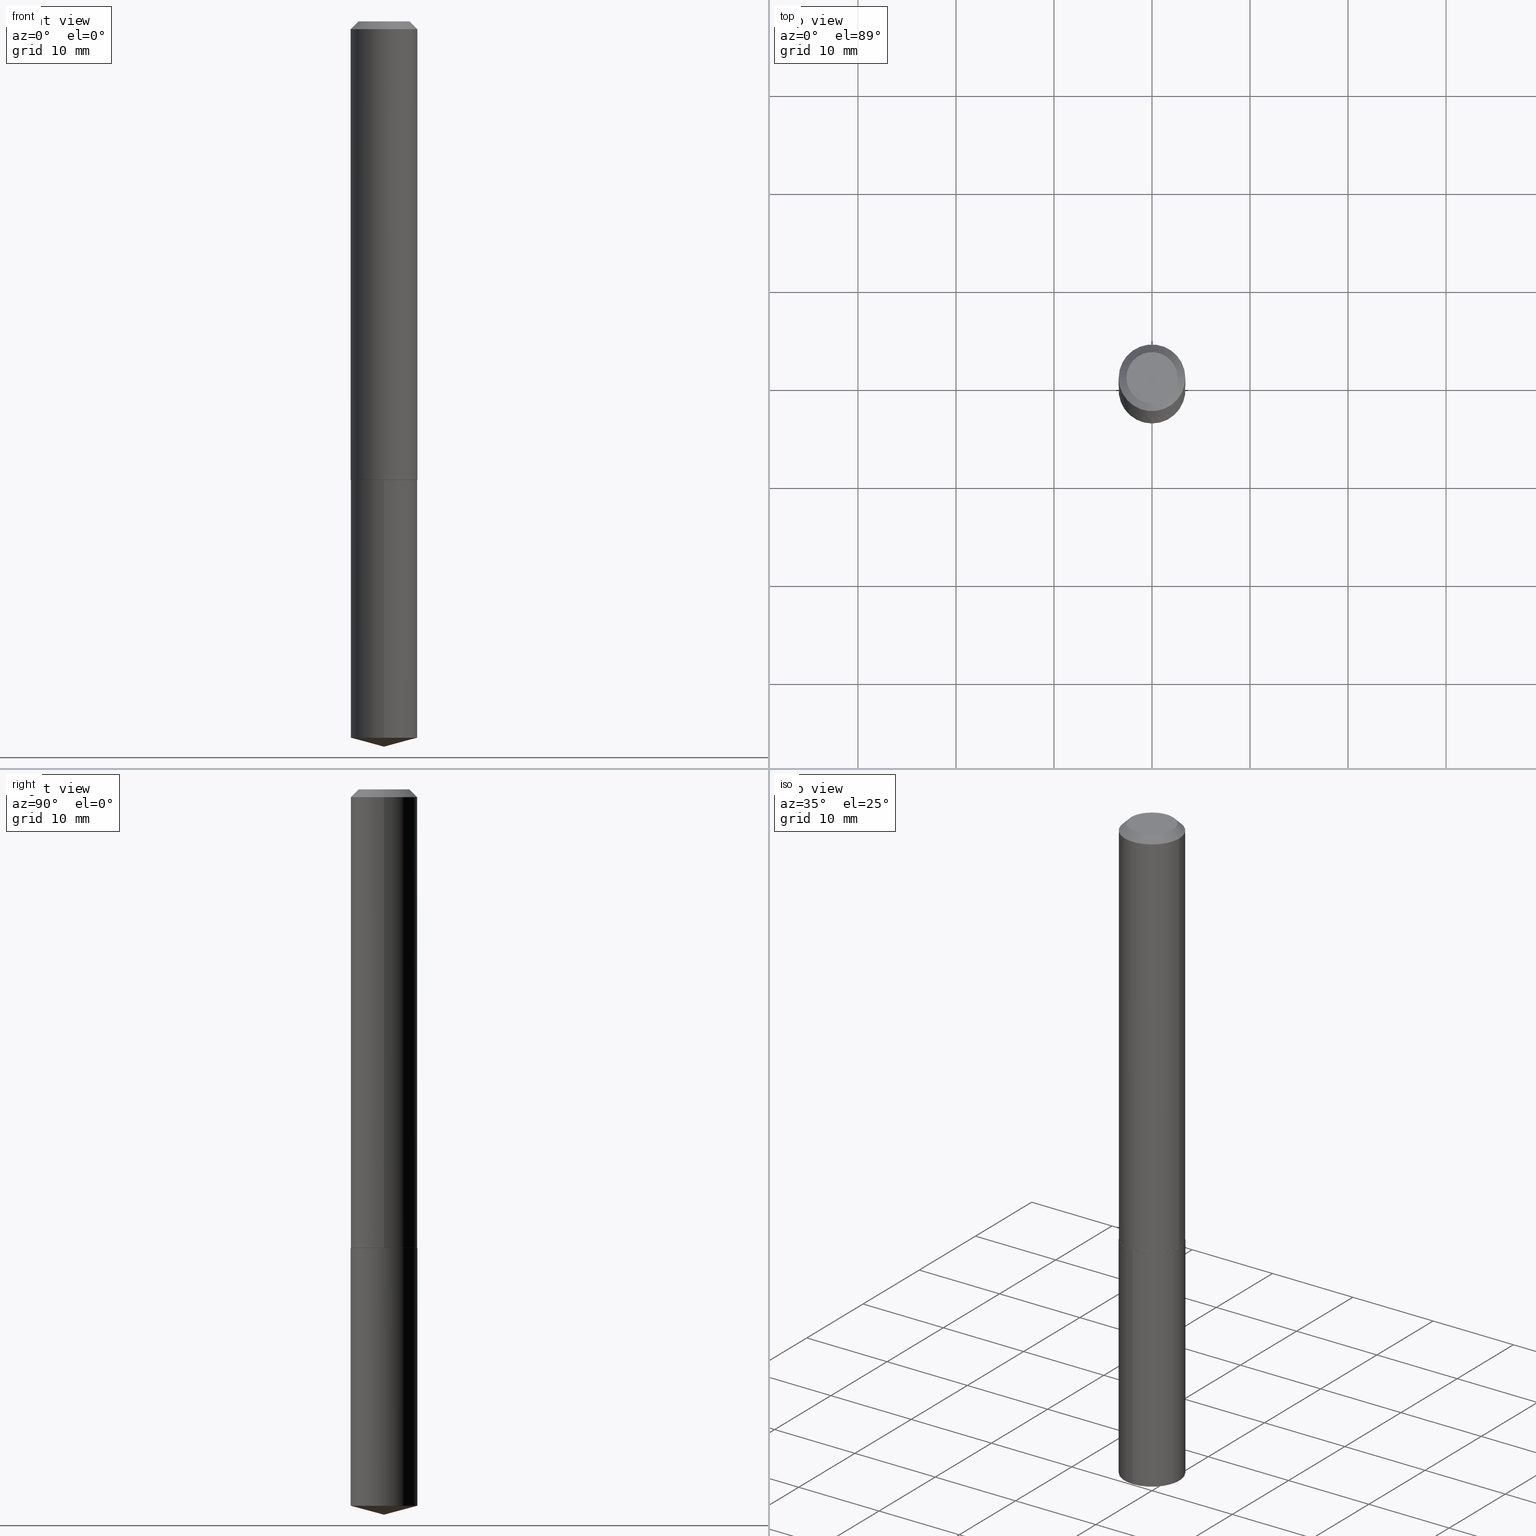
[diagram: canonical four-view strip — front | top / right | iso, engineering-drawing reading convention]
A machine part, canonical four-view strip (front | top / right | iso — engineering-drawing reading convention). The complete STEP part file that produces these views, byte-faithful:
ISO-10303-21;
HEADER;
FILE_DESCRIPTION (( 'STEP AP203' ),
    '1' );
FILE_NAME ('63013.STEP',
    '2024-04-23T07:36:08',
    ( '' ),
    ( '' ),
    'SwSTEP 2.0',
    'SolidWorks 2023',
    '' );
FILE_SCHEMA (( 'CONFIG_CONTROL_DESIGN' ));
ENDSEC;

DATA;
#1 = APPROVAL_ROLE ( '' ) ;
#2 = VERTEX_POINT ( 'NONE', #315 ) ;
#3 = DIRECTION ( 'NONE',  ( 1.000000000000000000, -6.982962677686265922E-15, 4.876176775795935793E-29 ) ) ;
#4 = VECTOR ( 'NONE', #382, 39.37007874015748143 ) ;
#5 = DIRECTION ( 'NONE',  ( -2.445468806185136877E-29, 3.491481338843145188E-15, 1.000000000000000000 ) ) ;
#6 = APPROVAL_DATE_TIME ( #311, #270 ) ;
#7 = EDGE_CURVE ( 'NONE', #200, #369, #129, .T. ) ;
#8 = ORIENTED_EDGE ( 'NONE', *, *, #20, .F. ) ;
#9 = EDGE_LOOP ( 'NONE', ( #171, #363 ) ) ;
#10 = DIRECTION ( 'NONE',  ( 6.863315791527690315E-15, 0.9659258262890690894, 0.2588190451025177974 ) ) ;
#11 = EDGE_CURVE ( 'NONE', #260, #47, #21, .T. ) ;
#12 = CARTESIAN_POINT ( 'NONE',  ( 0.1338499999999999968, -1.043778346247155835E-15, -0.03125000000000021511 ) ) ;
#13 = EDGE_CURVE ( 'NONE', #191, #369, #115, .T. ) ;
#14 = ORIENTED_EDGE ( 'NONE', *, *, #364, .F. ) ;
#15 = DIRECTION ( 'NONE',  ( 1.000000000000000000, -6.982962677686264344E-15, 0.000000000000000000 ) ) ;
#16 = AXIS2_PLACEMENT_3D ( 'NONE', #292, #298, #265 ) ;
#17 = PRODUCT_DEFINITION_FORMATION_WITH_SPECIFIED_SOURCE ( 'ANY', '', #307, .NOT_KNOWN. ) ;
#18 = EDGE_LOOP ( 'NONE', ( #250, #184, #385, #72 ) ) ;
#19 = CARTESIAN_POINT ( 'NONE',  ( -0.1333500000000001073, -5.482896401508290877E-15, -1.842500000000000249 ) ) ;
#20 = EDGE_CURVE ( 'NONE', #222, #192, #341, .T. ) ;
#21 = LINE ( 'NONE', #284, #383 ) ;
#22 = DIRECTION ( 'NONE',  ( -6.745023994389835189E-15, -0.9659258262890670910, 0.2588190451025245142 ) ) ;
#23 = DIRECTION ( 'NONE',  ( -2.445609890666665259E-29, 3.491279297835566768E-15, 1.000000000000000000 ) ) ;
#24 = ORIENTED_EDGE ( 'NONE', *, *, #11, .F. ) ;
#25 = VECTOR ( 'NONE', #354, 39.37007874015748143 ) ;
#26 = SECURITY_CLASSIFICATION ( '', '', #39 ) ;
#27 = DIRECTION ( 'NONE',  ( 1.000000000000000000, -6.982962677686267499E-15, 4.876182450887182109E-29 ) ) ;
#28 = ORIENTED_EDGE ( 'NONE', *, *, #202, .T. ) ;
#29 = DIRECTION ( 'NONE',  ( 2.438088387897960049E-29, -3.491481338843145188E-15, -1.000000000000000000 ) ) ;
#30 = DIRECTION ( 'NONE',  ( 0.7071067811867045583, -2.468850131083901441E-15, 0.7071067811863904762 ) ) ;
#31 = FACE_OUTER_BOUND ( 'NONE', #227, .T. ) ;
#32 = CARTESIAN_POINT ( 'NONE',  ( 4.505776275396114718E-29, -6.433054366818497031E-15, -1.842500000000000249 ) ) ;
#33 = ADVANCED_FACE ( 'NONE', ( #164 ), #80, .T. ) ;
#34 = AXIS2_PLACEMENT_3D ( 'NONE', #356, #287, #15 ) ;
#35 = APPROVAL_DATE_TIME ( #277, #132 ) ;
#36 = EDGE_CURVE ( 'NONE', #134, #295, #343, .T. ) ;
#37 = ORIENTED_EDGE ( 'NONE', *, *, #20, .T. ) ;
#38 = CALENDAR_DATE ( 2024, 23, 4 ) ;
#39 = SECURITY_CLASSIFICATION_LEVEL ( 'unclassified' ) ;
#40 = ORIENTED_EDGE ( 'NONE', *, *, #66, .F. ) ;
#41 = MANIFOLD_SOLID_BREP ( 'Body-Move/Copy2[1]', #42 ) ;
#42 = CLOSED_SHELL ( 'NONE', ( #50, #168, #55, #148, #280 ) ) ;
#43 = MANIFOLD_SOLID_BREP ( 'Body-Move/Copy2[2]', #282 ) ;
#44 = ADVANCED_FACE ( 'NONE', ( #291 ), #211, .T. ) ;
#45 = ORIENTED_EDGE ( 'NONE', *, *, #223, .F. ) ;
#46 = ADVANCED_FACE ( 'NONE', ( #87 ), #74, .T. ) ;
#47 = VERTEX_POINT ( 'NONE', #12 ) ;
#48 = AXIS2_PLACEMENT_3D ( 'NONE', #51, #321, #54 ) ;
#49 = AXIS2_PLACEMENT_3D ( 'NONE', #61, #172, #27 ) ;
#50 = ADVANCED_FACE ( 'NONE', ( #169 ), #293, .T. ) ;
#51 = CARTESIAN_POINT ( 'NONE',  ( 0.000000000000000000, 0.000000000000000000, 0.000000000000000000 ) ) ;
#52 = CARTESIAN_POINT ( 'NONE',  ( 7.642090019328604414E-31, -1.091087918388490513E-16, -0.03125000000000021511 ) ) ;
#53 =( NAMED_UNIT ( * ) PLANE_ANGLE_UNIT ( ) SI_UNIT ( $, .RADIAN. ) );
#54 = DIRECTION ( 'NONE',  ( 1.000000000000000000, -6.982962677686266711E-15, 4.876176775795934672E-29 ) ) ;
#55 = ADVANCED_FACE ( 'NONE', ( #389 ), #299, .T. ) ;
#56 = LOCAL_TIME ( 3, 36, 8.000000000000000000, #165 ) ;
#57 = EDGE_LOOP ( 'NONE', ( #229, #28 ) ) ;
#58 = CARTESIAN_POINT ( 'NONE',  ( 7.642090019328604414E-31, -1.091087918388490513E-16, -0.03125000000000021511 ) ) ;
#59 = CARTESIAN_POINT ( 'NONE',  ( 7.642090019328604414E-31, -1.091087918388490513E-16, -0.03125000000000021511 ) ) ;
#60 = ORIENTED_EDGE ( 'NONE', *, *, #313, .T. ) ;
#61 = CARTESIAN_POINT ( 'NONE',  ( -1.766952972086489110E-47, 2.522740553079194936E-33, 7.225416114969328827E-19 ) ) ;
#62 = AXIS2_PLACEMENT_3D ( 'NONE', #58, #207, #93 ) ;
#63 = FACE_OUTER_BOUND ( 'NONE', #9, .T. ) ;
#64 = APPROVAL_ROLE ( '' ) ;
#65 = CARTESIAN_POINT ( 'NONE',  ( 4.505776275396114718E-29, -6.433054366818497031E-15, -1.842500000000000249 ) ) ;
#66 = EDGE_CURVE ( 'NONE', #359, #306, #154, .T. ) ;
#67 = CARTESIAN_POINT ( 'NONE',  ( 9.510614518149640872E-16, 0.1338499999999935297, -1.842500000000000915 ) ) ;
#68 = CONICAL_SURFACE ( 'NONE', #121, 146.9311341562547568, 1.308996938995746762 ) ;
#69 = EDGE_LOOP ( 'NONE', ( #185, #262, #327, #8 ) ) ;
#70 = COORDINATED_UNIVERSAL_TIME_OFFSET ( 5, 0, .BEHIND. ) ;
#71 = CALENDAR_DATE ( 2024, 23, 4 ) ;
#72 = ORIENTED_EDGE ( 'NONE', *, *, #78, .F. ) ;
#73 = PERSON_AND_ORGANIZATION_ROLE ( 'design_supplier' ) ;
#74 = CONICAL_SURFACE ( 'NONE', #166, 0.1338500000000002188, 0.7853981633976704346 ) ;
#75 = ORGANIZATION ( 'UNSPECIFIED', 'UNSPECIFIED', '' ) ;
#76 = CC_DESIGN_PERSON_AND_ORGANIZATION_ASSIGNMENT ( #374, #251, ( #17 ) ) ;
#77 = PERSON_AND_ORGANIZATION_ROLE ( 'classification_officer' ) ;
#78 = EDGE_CURVE ( 'NONE', #200, #2, #328, .T. ) ;
#79 = DIRECTION ( 'NONE',  ( -2.445468806185136597E-29, 3.491481338843145583E-15, 1.000000000000000000 ) ) ;
#80 = CYLINDRICAL_SURFACE ( 'NONE', #48, 0.1338500000000001078 ) ;
#81 = CC_DESIGN_PERSON_AND_ORGANIZATION_ASSIGNMENT ( #124, #226, ( #307 ) ) ;
#82 = DIRECTION ( 'NONE',  ( -2.445609890666665259E-29, 3.491279297835566768E-15, 1.000000000000000000 ) ) ;
#83 = AXIS2_PLACEMENT_3D ( 'NONE', #32, #105, #320 ) ;
#84 = ORIENTED_EDGE ( 'NONE', *, *, #388, .T. ) ;
#85 = DIRECTION ( 'NONE',  ( -2.445609890666665259E-29, 3.491279297835566768E-15, 1.000000000000000000 ) ) ;
#86 = EDGE_CURVE ( 'NONE', #369, #200, #193, .T. ) ;
#87 = FACE_OUTER_BOUND ( 'NONE', #144, .T. ) ;
#88 = DIRECTION ( 'NONE',  ( -2.445468806185136597E-29, 3.491481338843145583E-15, 1.000000000000000000 ) ) ;
#89 = CIRCLE ( 'NONE', #332, 0.1025999999999999829 ) ;
#90 = DIRECTION ( 'NONE',  ( -2.445609890666665259E-29, 3.491279297835566768E-15, 1.000000000000000000 ) ) ;
#91 = ADVANCED_FACE ( 'NONE', ( #358 ), #331, .T. ) ;
#92 = CARTESIAN_POINT ( 'NONE',  ( 4.505776275396114718E-29, -6.433054366818497031E-15, -1.842500000000000249 ) ) ;
#93 = DIRECTION ( 'NONE',  ( 1.000000000000000000, -6.982962677686266711E-15, 0.000000000000000000 ) ) ;
#94 = ADVANCED_FACE ( 'NONE', ( #63 ), #142, .F. ) ;
#95 = DIRECTION ( 'NONE',  ( -1.000000000000000000, 6.982962677686266711E-15, 0.000000000000000000 ) ) ;
#96 = PERSON_AND_ORGANIZATION ( #353, #75 ) ;
#97 = CIRCLE ( 'NONE', #312, 0.1338500000000002188 ) ;
#98 = CARTESIAN_POINT ( 'NONE',  ( -8.834764860432445552E-48, 1.261370276539597468E-33, 3.612708057484664413E-19 ) ) ;
#99 = DIRECTION ( 'NONE',  ( 1.000000000000000000, -6.982962677686269866E-15, 0.000000000000000000 ) ) ;
#100 = CC_DESIGN_PERSON_AND_ORGANIZATION_ASSIGNMENT ( #217, #77, ( #26 ) ) ;
#101 = APPROVAL_STATUS ( 'not_yet_approved' ) ;
#102 = VECTOR ( 'NONE', #22, 39.37007874015748854 ) ;
#103 = COORDINATED_UNIVERSAL_TIME_OFFSET ( 5, 0, .BEHIND. ) ;
#104 = APPROVAL_STATUS ( 'not_yet_approved' ) ;
#105 = DIRECTION ( 'NONE',  ( 2.445609890666664699E-29, -3.491279297835566768E-15, -1.000000000000000000 ) ) ;
#106 = EDGE_LOOP ( 'NONE', ( #24, #45, #37, #376 ) ) ;
#107 = EDGE_CURVE ( 'NONE', #2, #137, #174, .T. ) ;
#108 = PERSON_AND_ORGANIZATION ( #353, #75 ) ;
#109 = AXIS2_PLACEMENT_3D ( 'NONE', #59, #170, #95 ) ;
#110 = ORIENTED_EDGE ( 'NONE', *, *, #364, .T. ) ;
#111 = EDGE_CURVE ( 'NONE', #359, #295, #232, .T. ) ;
#112 = CARTESIAN_POINT ( 'NONE',  ( 4.504553540993022477E-29, -6.431308626149075527E-15, -1.842000000000000526 ) ) ;
#113 = EDGE_LOOP ( 'NONE', ( #372, #60, #157 ) ) ;
#114 = DIRECTION ( 'NONE',  ( -1.000000000000000000, 6.982962677686266711E-15, 0.000000000000000000 ) ) ;
#115 = LINE ( 'NONE', #373, #138 ) ;
#116 = LOCAL_TIME ( 3, 36, 8.000000000000000000, #70 ) ;
#117 = ORIENTED_EDGE ( 'NONE', *, *, #242, .T. ) ;
#118 = UNCERTAINTY_MEASURE_WITH_UNIT (LENGTH_MEASURE( 1.000000000000000082E-05 ), #146, 'distance_accuracy_value', 'NONE');
#119 = DIRECTION ( 'NONE',  ( 1.000000000000000000, -6.982962677686269866E-15, 0.000000000000000000 ) ) ;
#120 = DIRECTION ( 'NONE',  ( -6.982962677686265922E-15, -1.000000000000000000, 3.510303681827646350E-15 ) ) ;
#121 = AXIS2_PLACEMENT_3D ( 'NONE', #236, #90, #203 ) ;
#122 = DIRECTION ( 'NONE',  ( -6.982962677686265133E-15, -1.000000000000000000, 4.081954417130015942E-15 ) ) ;
#123 = DIRECTION ( 'NONE',  ( 1.000000000000000000, -6.982962677686264344E-15, 0.000000000000000000 ) ) ;
#124 = PERSON_AND_ORGANIZATION ( #353, #75 ) ;
#125 = DIRECTION ( 'NONE',  ( 1.000000000000000000, -6.982962677686266711E-15, 4.876176775795934672E-29 ) ) ;
#126 = CIRCLE ( 'NONE', #49, 0.1025999999999999829 ) ;
#127 = CC_DESIGN_PERSON_AND_ORGANIZATION_ASSIGNMENT ( #235, #274, ( #347 ) ) ;
#128 = CARTESIAN_POINT ( 'NONE',  ( 0.000000000000000000, 0.000000000000000000, 0.000000000000000000 ) ) ;
#129 = CIRCLE ( 'NONE', #158, 0.1338499999999999968 ) ;
#130 = CALENDAR_DATE ( 2024, 23, 4 ) ;
#131 = COORDINATED_UNIVERSAL_TIME_OFFSET ( 5, 0, .BEHIND. ) ;
#132 = APPROVAL ( #104, 'UNSPECIFIED' ) ;
#133 = AXIS2_PLACEMENT_3D ( 'NONE', #303, #387, #120 ) ;
#134 = VERTEX_POINT ( 'NONE', #335 ) ;
#135 = EDGE_LOOP ( 'NONE', ( #110, #379, #257, #338 ) ) ;
#136 = ORIENTED_EDGE ( 'NONE', *, *, #78, .T. ) ;
#137 = VERTEX_POINT ( 'NONE', #67 ) ;
#138 = VECTOR ( 'NONE', #10, 39.37007874015748143 ) ;
#139 = DIRECTION ( 'NONE',  ( 1.000000000000000000, 0.000000000000000000, 0.000000000000000000 ) ) ;
#140 = DIRECTION ( 'NONE',  ( -6.982962677686265133E-15, -1.000000000000000000, 4.081954417130015942E-15 ) ) ;
#141 = PLANE ( 'NONE',  #83 ) ;
#142 = PLANE ( 'NONE',  #239 ) ;
#143 = DIRECTION ( 'NONE',  ( -6.982962677686265133E-15, -1.000000000000000000, 4.081954417130015942E-15 ) ) ;
#144 = EDGE_LOOP ( 'NONE', ( #342, #281, #317, #161 ) ) ;
#145 = DIRECTION ( 'NONE',  ( -2.445468806185136597E-29, 3.491481338843145583E-15, 1.000000000000000000 ) ) ;
#146 =( CONVERSION_BASED_UNIT ( 'INCH', #302 ) LENGTH_UNIT ( ) NAMED_UNIT ( #339 ) );
#147 = CARTESIAN_POINT ( 'NONE',  ( -0.1338500000000002188, -5.480247174334179676E-15, -1.842000000000000526 ) ) ;
#148 = ADVANCED_FACE ( 'NONE', ( #361 ), #352, .T. ) ;
#149 = CARTESIAN_POINT ( 'NONE',  ( 7.125039855468263396E-29, -1.017149310631414068E-14, -2.913400000000000212 ) ) ;
#150 = DATE_TIME_ROLE ( 'classification_date' ) ;
#151 = PERSON_AND_ORGANIZATION ( #353, #75 ) ;
#152 = CARTESIAN_POINT ( 'NONE',  ( 0.1333500000000001073, -7.364232439887960955E-15, -1.842500000000000249 ) ) ;
#153 = ADVANCED_FACE ( 'NONE', ( #334 ), #231, .T. ) ;
#154 = CIRCLE ( 'NONE', #366, 0.1333500000000001073 ) ;
#155 = ORIENTED_EDGE ( 'NONE', *, *, #181, .F. ) ;
#156 = EDGE_CURVE ( 'NONE', #369, #137, #271, .T. ) ;
#157 = ORIENTED_EDGE ( 'NONE', *, *, #86, .F. ) ;
#158 = AXIS2_PLACEMENT_3D ( 'NONE', #348, #85, #140 ) ;
#159 = CARTESIAN_POINT ( 'NONE',  ( 9.510614518149640872E-16, 0.1338499999999899492, -2.877535000593094860 ) ) ;
#160 = CIRCLE ( 'NONE', #340, 0.1338499999999999968 ) ;
#161 = ORIENTED_EDGE ( 'NONE', *, *, #388, .F. ) ;
#162 = ORIENTED_EDGE ( 'NONE', *, *, #13, .T. ) ;
#163 = CARTESIAN_POINT ( 'NONE',  ( 0.1338500000000002188, -7.365978180557384825E-15, -1.842000000000000526 ) ) ;
#164 = FACE_OUTER_BOUND ( 'NONE', #221, .T. ) ;
#165 = COORDINATED_UNIVERSAL_TIME_OFFSET ( 5, 0, .BEHIND. ) ;
#166 = AXIS2_PLACEMENT_3D ( 'NONE', #197, #349, #324 ) ;
#167 = CARTESIAN_POINT ( 'NONE',  ( 4.504553540993022477E-29, -6.431308626149075527E-15, -1.842000000000000526 ) ) ;
#168 = ADVANCED_FACE ( 'NONE', ( #31 ), #68, .T. ) ;
#169 = FACE_OUTER_BOUND ( 'NONE', #18, .T. ) ;
#170 = DIRECTION ( 'NONE',  ( 2.445468806185136597E-29, -3.491481338843145583E-15, -1.000000000000000000 ) ) ;
#171 = ORIENTED_EDGE ( 'NONE', *, *, #223, .T. ) ;
#172 = DIRECTION ( 'NONE',  ( -2.445468806185136597E-29, 3.491481338843145583E-15, 1.000000000000000000 ) ) ;
#173 = ORIENTED_EDGE ( 'NONE', *, *, #313, .F. ) ;
#174 = CIRCLE ( 'NONE', #378, 0.1338499999999999968 ) ;
#175 = APPROVAL_PERSON_ORGANIZATION ( #108, #132, #1 ) ;
#176 = DIRECTION ( 'NONE',  ( -2.445609890666665259E-29, 3.491279297835566768E-15, 1.000000000000000000 ) ) ;
#177 = DIRECTION ( 'NONE',  ( -2.445609890666665259E-29, 3.491279297835566768E-15, 1.000000000000000000 ) ) ;
#178 = CC_DESIGN_PERSON_AND_ORGANIZATION_ASSIGNMENT ( #368, #73, ( #17 ) ) ;
#179 = DIRECTION ( 'NONE',  ( -2.445609890666665259E-29, 3.491279297835566768E-15, 1.000000000000000000 ) ) ;
#180 = AXIS2_PLACEMENT_3D ( 'NONE', #128, #145, #125 ) ;
#181 = EDGE_CURVE ( 'NONE', #295, #192, #238, .T. ) ;
#182 = APPROVAL_PERSON_ORGANIZATION ( #151, #270, #370 ) ;
#183 = APPLICATION_CONTEXT ( 'configuration controlled 3d designs of mechanical parts and assemblies' ) ;
#184 = ORIENTED_EDGE ( 'NONE', *, *, #156, .T. ) ;
#185 = ORIENTED_EDGE ( 'NONE', *, *, #367, .F. ) ;
#186 = CALENDAR_DATE ( 2024, 23, 4 ) ;
#187 = AXIS2_PLACEMENT_3D ( 'NONE', #52, #255, #114 ) ;
#188 =( GEOMETRIC_REPRESENTATION_CONTEXT ( 3 ) GLOBAL_UNCERTAINTY_ASSIGNED_CONTEXT ( ( #118 ) ) GLOBAL_UNIT_ASSIGNED_CONTEXT ( ( #146, #53, #237 ) ) REPRESENTATION_CONTEXT ( 'NONE', 'WORKASPACE' ) );
#189 = CONICAL_SURFACE ( 'NONE', #109, 0.1338499999999999968, 0.7853981633974449483 ) ;
#190 = SHAPE_DEFINITION_REPRESENTATION ( #215, #266 ) ;
#191 = VERTEX_POINT ( 'NONE', #149 ) ;
#192 = VERTEX_POINT ( 'NONE', #269 ) ;
#193 = CIRCLE ( 'NONE', #323, 0.1338499999999999968 ) ;
#194 = ORIENTED_EDGE ( 'NONE', *, *, #36, .T. ) ;
#195 = DIRECTION ( 'NONE',  ( 0.000000000000000000, 0.000000000000000000, 1.000000000000000000 ) ) ;
#196 = ADVANCED_FACE ( 'NONE', ( #272 ), #189, .T. ) ;
#197 = CARTESIAN_POINT ( 'NONE',  ( 4.504553540993022477E-29, -6.431308626149075527E-15, -1.842000000000000526 ) ) ;
#198 = APPROVAL_STATUS ( 'not_yet_approved' ) ;
#199 = DIRECTION ( 'NONE',  ( 0.7071067811865451302, -7.319954787623248157E-15, -0.7071067811865499042 ) ) ;
#200 = VERTEX_POINT ( 'NONE', #294 ) ;
#201 = AXIS2_PLACEMENT_3D ( 'NONE', #355, #179, #230 ) ;
#202 = EDGE_CURVE ( 'NONE', #137, #2, #160, .T. ) ;
#203 = DIRECTION ( 'NONE',  ( -6.982962677686265922E-15, -1.000000000000000000, 3.510303681827646350E-15 ) ) ;
#204 = DIRECTION ( 'NONE',  ( -2.445468806185136597E-29, 3.491481338843145583E-15, 1.000000000000000000 ) ) ;
#205 = ORIENTED_EDGE ( 'NONE', *, *, #318, .F. ) ;
#206 = CARTESIAN_POINT ( 'NONE',  ( 7.037068110032762718E-29, -1.004665063692438826E-14, -2.877535000593094416 ) ) ;
#207 = DIRECTION ( 'NONE',  ( -2.445468806185136597E-29, 3.491481338843145583E-15, 1.000000000000000000 ) ) ;
#208 = AXIS2_PLACEMENT_3D ( 'NONE', #252, #82, #316 ) ;
#209 = DIRECTION ( 'NONE',  ( -1.000000000000000000, 6.982962677686265922E-15, -4.876176775795935793E-29 ) ) ;
#210 = CARTESIAN_POINT ( 'NONE',  ( -0.1338500000000001078, 9.510614518148948646E-16, -6.583994618306196527E-30 ) ) ;
#211 = CONICAL_SURFACE ( 'NONE', #187, 0.1338499999999999968, 0.7853981633974449483 ) ;
#212 = CC_DESIGN_DATE_AND_TIME_ASSIGNMENT ( #249, #243, ( #347 ) ) ;
#213 = VECTOR ( 'NONE', #326, 39.37007874015748143 ) ;
#214 = ORIENTED_EDGE ( 'NONE', *, *, #336, .F. ) ;
#215 = PRODUCT_DEFINITION_SHAPE ( 'NONE', 'NONE',  #347 ) ;
#216 = FACE_OUTER_BOUND ( 'NONE', #390, .T. ) ;
#217 = PERSON_AND_ORGANIZATION ( #353, #75 ) ;
#218 = EDGE_LOOP ( 'NONE', ( #194, #308, #214, #225 ) ) ;
#219 = FACE_OUTER_BOUND ( 'NONE', #57, .T. ) ;
#220 = AXIS2_PLACEMENT_3D ( 'NONE', #288, #195, #139 ) ;
#221 = EDGE_LOOP ( 'NONE', ( #155, #84, #117, #205 ) ) ;
#222 = VERTEX_POINT ( 'NONE', #384 ) ;
#223 = EDGE_CURVE ( 'NONE', #222, #260, #126, .T. ) ;
#224 = CIRCLE ( 'NONE', #62, 0.1338499999999999968 ) ;
#225 = ORIENTED_EDGE ( 'NONE', *, *, #242, .F. ) ;
#226 = PERSON_AND_ORGANIZATION_ROLE ( 'design_owner' ) ;
#227 = EDGE_LOOP ( 'NONE', ( #173, #162, #285 ) ) ;
#228 = DIRECTION ( 'NONE',  ( 1.000000000000000000, -6.982962677686267499E-15, 4.876182450887182109E-29 ) ) ;
#229 = ORIENTED_EDGE ( 'NONE', *, *, #107, .T. ) ;
#230 = DIRECTION ( 'NONE',  ( -6.982962677686265133E-15, -1.000000000000000000, 4.081954417130015942E-15 ) ) ;
#231 = CONICAL_SURFACE ( 'NONE', #283, 0.1338500000000002188, 0.7853981633976704346 ) ;
#232 = LINE ( 'NONE', #147, #4 ) ;
#233 = LINE ( 'NONE', #325, #102 ) ;
#234 = ORIENTED_EDGE ( 'NONE', *, *, #156, .F. ) ;
#235 = PERSON_AND_ORGANIZATION ( #353, #75 ) ;
#236 = CARTESIAN_POINT ( 'NONE',  ( -8.915907405594348839E-28, 1.272800754927973754E-13, 36.45667874015747856 ) ) ;
#237 =( NAMED_UNIT ( * ) SI_UNIT ( $, .STERADIAN. ) SOLID_ANGLE_UNIT ( ) );
#238 = LINE ( 'NONE', #210, #213 ) ;
#239 = AXIS2_PLACEMENT_3D ( 'NONE', #98, #29, #209 ) ;
#240 = CC_DESIGN_APPROVAL ( #270, ( #17 ) ) ;
#241 = DIRECTION ( 'NONE',  ( -6.982962677686265133E-15, -1.000000000000000000, 4.081954417130015942E-15 ) ) ;
#242 = EDGE_CURVE ( 'NONE', #134, #47, #337, .T. ) ;
#243 = DATE_TIME_ROLE ( 'creation_date' ) ;
#244 = CARTESIAN_POINT ( 'NONE',  ( -0.1338500000000002188, -5.480247174334179676E-15, -1.842000000000000526 ) ) ;
#245 = CC_DESIGN_DATE_AND_TIME_ASSIGNMENT ( #362, #150, ( #26 ) ) ;
#246 = EDGE_LOOP ( 'NONE', ( #234, #365, #136, #329 ) ) ;
#247 = VECTOR ( 'NONE', #30, 39.37007874015748143 ) ;
#248 = LOCAL_TIME ( 3, 36, 8.000000000000000000, #310 ) ;
#249 = DATE_AND_TIME ( #38, #351 ) ;
#250 = ORIENTED_EDGE ( 'NONE', *, *, #7, .T. ) ;
#251 = PERSON_AND_ORGANIZATION_ROLE ( 'creator' ) ;
#252 = CARTESIAN_POINT ( 'NONE',  ( 4.505776275396114718E-29, -6.433054366818497031E-15, -1.842500000000000249 ) ) ;
#253 = ADVANCED_FACE ( 'NONE', ( #216 ), #254, .F. ) ;
#254 = PLANE ( 'NONE',  #268 ) ;
#255 = DIRECTION ( 'NONE',  ( 2.445468806185136597E-29, -3.491481338843145583E-15, -1.000000000000000000 ) ) ;
#256 = MECHANICAL_CONTEXT ( 'NONE', #183, 'mechanical' ) ;
#257 = ORIENTED_EDGE ( 'NONE', *, *, #36, .F. ) ;
#258 = APPLICATION_PROTOCOL_DEFINITION ( 'international standard', 'config_control_design', 1994, #183 ) ;
#259 = CIRCLE ( 'NONE', #16, 0.1338499999999999968 ) ;
#260 = VERTEX_POINT ( 'NONE', #375 ) ;
#261 = CALENDAR_DATE ( 2024, 23, 4 ) ;
#262 = ORIENTED_EDGE ( 'NONE', *, *, #11, .T. ) ;
#263 = CARTESIAN_POINT ( 'NONE',  ( -1.766952972086489110E-47, 2.522740553079194936E-33, 7.225416114969328827E-19 ) ) ;
#264 = CARTESIAN_POINT ( 'NONE',  ( -9.346695544082615722E-16, -0.1338500000000064361, -1.842499999999999805 ) ) ;
#265 = DIRECTION ( 'NONE',  ( 1.000000000000000000, -6.982962677686266711E-15, 0.000000000000000000 ) ) ;
#266 = ADVANCED_BREP_SHAPE_REPRESENTATION ( '63013', ( #41, #43, #220 ), #188 ) ;
#267 = DIRECTION ( 'NONE',  ( -2.445609890666665259E-29, 3.491279297835566768E-15, 1.000000000000000000 ) ) ;
#268 = AXIS2_PLACEMENT_3D ( 'NONE', #300, #305, #3 ) ;
#269 = CARTESIAN_POINT ( 'NONE',  ( -0.1338499999999999968, -2.319147257179066069E-15, -0.03125000000000021511 ) ) ;
#270 = APPROVAL ( #101, 'UNSPECIFIED' ) ;
#271 = LINE ( 'NONE', #304, #25 ) ;
#272 = FACE_OUTER_BOUND ( 'NONE', #106, .T. ) ;
#273 = CC_DESIGN_APPROVAL ( #297, ( #347 ) ) ;
#274 = PERSON_AND_ORGANIZATION_ROLE ( 'creator' ) ;
#275 = VECTOR ( 'NONE', #286, 39.37007874015748143 ) ;
#276 = CIRCLE ( 'NONE', #34, 0.1333500000000001073 ) ;
#277 = DATE_AND_TIME ( #71, #116 ) ;
#278 = EDGE_CURVE ( 'NONE', #306, #134, #279, .T. ) ;
#279 = LINE ( 'NONE', #163, #247 ) ;
#280 = ADVANCED_FACE ( 'NONE', ( #219 ), #141, .F. ) ;
#281 = ORIENTED_EDGE ( 'NONE', *, *, #66, .T. ) ;
#282 = CLOSED_SHELL ( 'NONE', ( #44, #91, #153, #253, #46, #33, #196, #94 ) ) ;
#283 = AXIS2_PLACEMENT_3D ( 'NONE', #386, #204, #99 ) ;
#284 = CARTESIAN_POINT ( 'NONE',  ( 0.1338499999999999968, -1.027386448840568494E-15, -0.03125000000000021511 ) ) ;
#285 = ORIENTED_EDGE ( 'NONE', *, *, #7, .F. ) ;
#286 = DIRECTION ( 'NONE',  ( -0.7071067811865451302, 2.468850131082231817E-15, -0.7071067811865499042 ) ) ;
#287 = DIRECTION ( 'NONE',  ( -2.445468806185136597E-29, 3.491481338843145583E-15, 1.000000000000000000 ) ) ;
#288 = CARTESIAN_POINT ( 'NONE',  ( 0.000000000000000000, 0.000000000000000000, 0.000000000000000000 ) ) ;
#289 = APPROVAL_PERSON_ORGANIZATION ( #96, #297, #64 ) ;
#290 = CC_DESIGN_APPROVAL ( #132, ( #26 ) ) ;
#291 = FACE_OUTER_BOUND ( 'NONE', #69, .T. ) ;
#292 = CARTESIAN_POINT ( 'NONE',  ( 7.642090019328604414E-31, -1.091087918388490513E-16, -0.03125000000000021511 ) ) ;
#293 = CYLINDRICAL_SURFACE ( 'NONE', #208, 0.1338499999999999968 ) ;
#294 = CARTESIAN_POINT ( 'NONE',  ( -9.346695544082361315E-16, -0.1338500000000100165, -2.877535000593093972 ) ) ;
#295 = VERTEX_POINT ( 'NONE', #244 ) ;
#296 = DIRECTION ( 'NONE',  ( -2.445468806185136597E-29, 3.491481338843145583E-15, 1.000000000000000000 ) ) ;
#297 = APPROVAL ( #198, 'UNSPECIFIED' ) ;
#298 = DIRECTION ( 'NONE',  ( -2.445468806185136597E-29, 3.491481338843145583E-15, 1.000000000000000000 ) ) ;
#299 = CONICAL_SURFACE ( 'NONE', #133, 146.9311341562547568, 1.308996938995746762 ) ;
#300 = CARTESIAN_POINT ( 'NONE',  ( 4.505776275396114718E-29, -6.433054366818497031E-15, -1.842500000000000249 ) ) ;
#301 = CARTESIAN_POINT ( 'NONE',  ( 4.505776275396114718E-29, -6.433054366818497031E-15, -1.842500000000000249 ) ) ;
#302 = LENGTH_MEASURE_WITH_UNIT ( LENGTH_MEASURE( 0.02539999999999999897 ), #360 );
#303 = CARTESIAN_POINT ( 'NONE',  ( -8.915907405594348839E-28, 1.272800754927973754E-13, 36.45667874015747856 ) ) ;
#304 = CARTESIAN_POINT ( 'NONE',  ( 9.510614518149390408E-16, 0.1338499999999935575, -1.842500000000000915 ) ) ;
#305 = DIRECTION ( 'NONE',  ( -2.438088387897960049E-29, 3.491481338843145188E-15, 1.000000000000000000 ) ) ;
#306 = VERTEX_POINT ( 'NONE', #152 ) ;
#307 = PRODUCT ( '63013', '63013', '', ( #256 ) ) ;
#308 = ORIENTED_EDGE ( 'NONE', *, *, #181, .T. ) ;
#309 = CARTESIAN_POINT ( 'NONE',  ( 0.1338500000000001078, -9.346695544083075234E-16, 6.526762614402863887E-30 ) ) ;
#310 = COORDINATED_UNIVERSAL_TIME_OFFSET ( 5, 0, .BEHIND. ) ;
#311 = DATE_AND_TIME ( #186, #344 ) ;
#312 = AXIS2_PLACEMENT_3D ( 'NONE', #112, #79, #314 ) ;
#313 = EDGE_CURVE ( 'NONE', #191, #200, #233, .T. ) ;
#314 = DIRECTION ( 'NONE',  ( 1.000000000000000000, -6.982962677686269866E-15, 0.000000000000000000 ) ) ;
#315 = CARTESIAN_POINT ( 'NONE',  ( -9.346695544082615722E-16, -0.1338500000000064361, -1.842499999999999805 ) ) ;
#316 = DIRECTION ( 'NONE',  ( -6.982962677686265133E-15, -1.000000000000000000, 4.081954417130015942E-15 ) ) ;
#317 = ORIENTED_EDGE ( 'NONE', *, *, #278, .T. ) ;
#318 = EDGE_CURVE ( 'NONE', #192, #47, #224, .T. ) ;
#319 = APPROVAL_DATE_TIME ( #380, #297 ) ;
#320 = DIRECTION ( 'NONE',  ( 6.982962677686265922E-15, 1.000000000000000000, -3.491279297835566768E-15 ) ) ;
#321 = DIRECTION ( 'NONE',  ( -2.445468806185136597E-29, 3.491481338843145583E-15, 1.000000000000000000 ) ) ;
#322 = PRODUCT_RELATED_PRODUCT_CATEGORY ( 'detail', '', ( #307 ) ) ;
#323 = AXIS2_PLACEMENT_3D ( 'NONE', #206, #177, #122 ) ;
#324 = DIRECTION ( 'NONE',  ( 1.000000000000000000, -6.982962677686269866E-15, 0.000000000000000000 ) ) ;
#325 = CARTESIAN_POINT ( 'NONE',  ( 7.124519959153830418E-29, -1.017223762742706886E-14, -2.913400000000000212 ) ) ;
#326 = DIRECTION ( 'NONE',  ( -2.445468806185136877E-29, 3.491481338843145188E-15, 1.000000000000000000 ) ) ;
#327 = ORIENTED_EDGE ( 'NONE', *, *, #336, .T. ) ;
#328 = LINE ( 'NONE', #264, #350 ) ;
#329 = ORIENTED_EDGE ( 'NONE', *, *, #202, .F. ) ;
#330 = APPLICATION_CONTEXT ( 'configuration controlled 3d designs of mechanical parts and assemblies' ) ;
#331 = CYLINDRICAL_SURFACE ( 'NONE', #180, 0.1338500000000001078 ) ;
#332 = AXIS2_PLACEMENT_3D ( 'NONE', #263, #88, #228 ) ;
#333 = CC_DESIGN_SECURITY_CLASSIFICATION ( #26, ( #17 ) ) ;
#334 = FACE_OUTER_BOUND ( 'NONE', #135, .T. ) ;
#335 = CARTESIAN_POINT ( 'NONE',  ( 0.1338500000000002188, -7.365978180557384825E-15, -1.842000000000000526 ) ) ;
#336 = EDGE_CURVE ( 'NONE', #47, #192, #259, .T. ) ;
#337 = LINE ( 'NONE', #309, #371 ) ;
#338 = ORIENTED_EDGE ( 'NONE', *, *, #278, .F. ) ;
#339 = DIMENSIONAL_EXPONENTS ( 1.000000000000000000, 0.000000000000000000, 0.000000000000000000, 0.000000000000000000, 0.000000000000000000, 0.000000000000000000, 0.000000000000000000 ) ;
#340 = AXIS2_PLACEMENT_3D ( 'NONE', #92, #23, #143 ) ;
#341 = LINE ( 'NONE', #346, #275 ) ;
#342 = ORIENTED_EDGE ( 'NONE', *, *, #111, .F. ) ;
#343 = CIRCLE ( 'NONE', #377, 0.1338500000000002188 ) ;
#344 = LOCAL_TIME ( 3, 36, 8.000000000000000000, #103 ) ;
#345 = DESIGN_CONTEXT ( 'detailed design', #330, 'design' ) ;
#346 = CARTESIAN_POINT ( 'NONE',  ( -0.1338499999999999968, 8.255607625694576339E-16, -0.03125000000000021511 ) ) ;
#347 = PRODUCT_DEFINITION ( 'UNKNOWN', '', #17, #345 ) ;
#348 = CARTESIAN_POINT ( 'NONE',  ( 7.037068110032762718E-29, -1.004665063692438826E-14, -2.877535000593094416 ) ) ;
#349 = DIRECTION ( 'NONE',  ( -2.445468806185136597E-29, 3.491481338843145583E-15, 1.000000000000000000 ) ) ;
#350 = VECTOR ( 'NONE', #267, 39.37007874015748143 ) ;
#351 = LOCAL_TIME ( 3, 36, 8.000000000000000000, #131 ) ;
#352 = CYLINDRICAL_SURFACE ( 'NONE', #201, 0.1338499999999999968 ) ;
#353 = PERSON ( 'UNSPECIFIED', 'UNSPECIFIED', 'UNSPECIFIED', ('UNSPECIFIED'), ('UNSPECIFIED'), ('UNSPECIFIED') ) ;
#354 = DIRECTION ( 'NONE',  ( -2.445609890666665259E-29, 3.491279297835566768E-15, 1.000000000000000000 ) ) ;
#355 = CARTESIAN_POINT ( 'NONE',  ( 4.505776275396114718E-29, -6.433054366818497031E-15, -1.842500000000000249 ) ) ;
#356 = CARTESIAN_POINT ( 'NONE',  ( 4.505776275396114718E-29, -6.433054366818497031E-15, -1.842500000000000249 ) ) ;
#357 = APPLICATION_PROTOCOL_DEFINITION ( 'international standard', 'config_control_design', 1994, #330 ) ;
#358 = FACE_OUTER_BOUND ( 'NONE', #218, .T. ) ;
#359 = VERTEX_POINT ( 'NONE', #19 ) ;
#360 =( LENGTH_UNIT ( ) NAMED_UNIT ( * ) SI_UNIT ( $, .METRE. ) );
#361 = FACE_OUTER_BOUND ( 'NONE', #246, .T. ) ;
#362 = DATE_AND_TIME ( #130, #248 ) ;
#363 = ORIENTED_EDGE ( 'NONE', *, *, #367, .T. ) ;
#364 = EDGE_CURVE ( 'NONE', #306, #359, #276, .T. ) ;
#365 = ORIENTED_EDGE ( 'NONE', *, *, #86, .T. ) ;
#366 = AXIS2_PLACEMENT_3D ( 'NONE', #65, #296, #123 ) ;
#367 = EDGE_CURVE ( 'NONE', #260, #222, #89, .T. ) ;
#368 = PERSON_AND_ORGANIZATION ( #353, #75 ) ;
#369 = VERTEX_POINT ( 'NONE', #159 ) ;
#370 = APPROVAL_ROLE ( '' ) ;
#371 = VECTOR ( 'NONE', #5, 39.37007874015748143 ) ;
#372 = ORIENTED_EDGE ( 'NONE', *, *, #13, .F. ) ;
#373 = CARTESIAN_POINT ( 'NONE',  ( 7.125044414345252480E-29, -1.017149310631414225E-14, -2.913400000000000212 ) ) ;
#374 = PERSON_AND_ORGANIZATION ( #353, #75 ) ;
#375 = CARTESIAN_POINT ( 'NONE',  ( 0.1025999999999999829, -8.656367717059636643E-16, 7.225416115024643461E-19 ) ) ;
#376 = ORIENTED_EDGE ( 'NONE', *, *, #318, .T. ) ;
#377 = AXIS2_PLACEMENT_3D ( 'NONE', #167, #381, #119 ) ;
#378 = AXIS2_PLACEMENT_3D ( 'NONE', #301, #176, #241 ) ;
#379 = ORIENTED_EDGE ( 'NONE', *, *, #111, .T. ) ;
#380 = DATE_AND_TIME ( #261, #56 ) ;
#381 = DIRECTION ( 'NONE',  ( -2.445468806185136597E-29, 3.491481338843145583E-15, 1.000000000000000000 ) ) ;
#382 = DIRECTION ( 'NONE',  ( -0.7071067811867045583, 7.493145998870922140E-15, 0.7071067811863904762 ) ) ;
#383 = VECTOR ( 'NONE', #199, 39.37007874015748143 ) ;
#384 = CARTESIAN_POINT ( 'NONE',  ( -0.1025999999999999829, 7.710063666500343655E-16, 7.225416114917319089E-19 ) ) ;
#385 = ORIENTED_EDGE ( 'NONE', *, *, #107, .F. ) ;
#386 = CARTESIAN_POINT ( 'NONE',  ( 4.504553540993022477E-29, -6.431308626149075527E-15, -1.842000000000000526 ) ) ;
#387 = DIRECTION ( 'NONE',  ( -2.445609890666665259E-29, 3.491279297835566768E-15, 1.000000000000000000 ) ) ;
#388 = EDGE_CURVE ( 'NONE', #295, #134, #97, .T. ) ;
#389 = FACE_OUTER_BOUND ( 'NONE', #113, .T. ) ;
#390 = EDGE_LOOP ( 'NONE', ( #14, #40 ) ) ;
ENDSEC;
END-ISO-10303-21;
